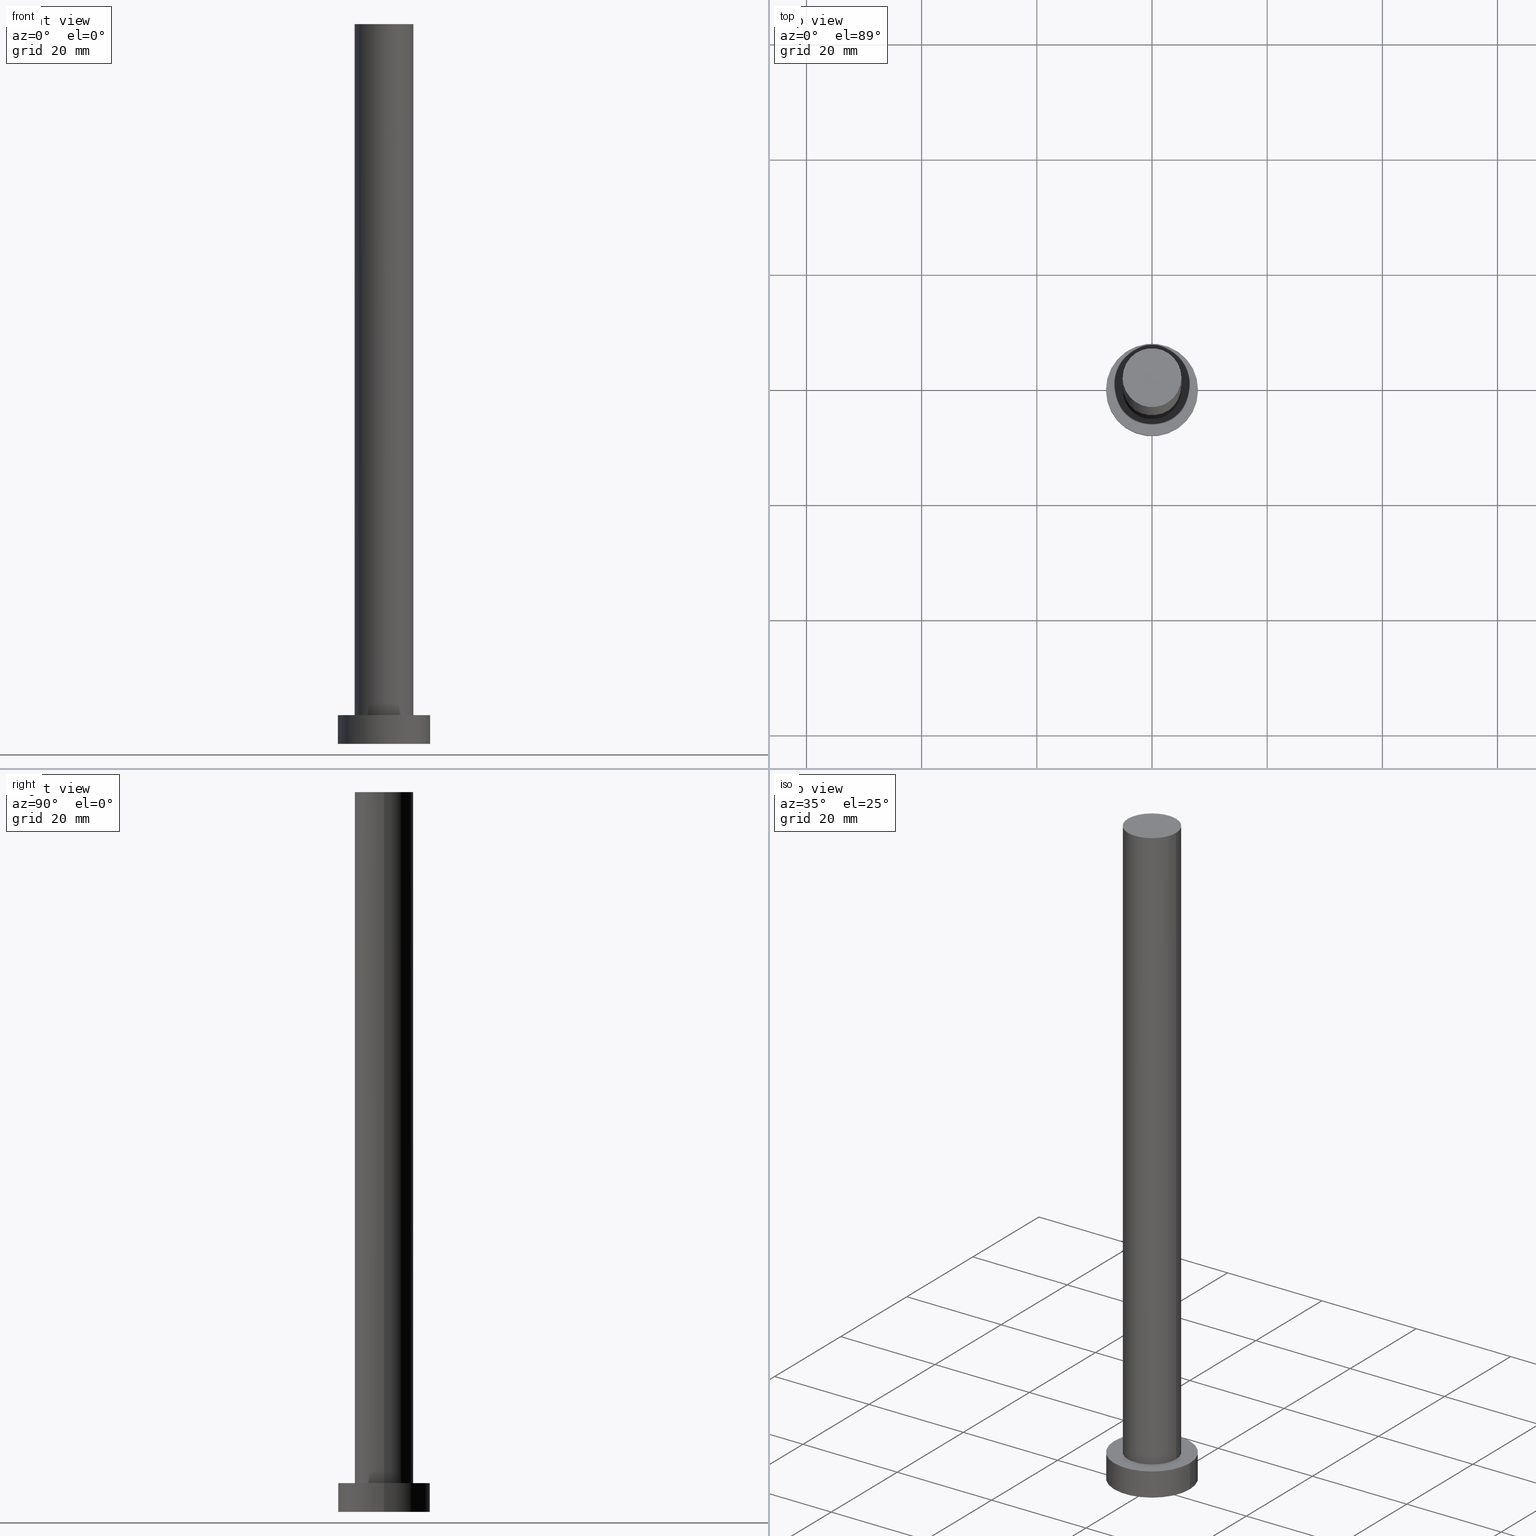
[diagram: canonical four-view strip — front | top / right | iso, engineering-drawing reading convention]
A machine part, canonical four-view strip (front | top / right | iso — engineering-drawing reading convention). The complete STEP part file that produces these views, byte-faithful:
ISO-10303-21;
HEADER;
FILE_DESCRIPTION (( 'STEP AP203' ),
    '1' );
FILE_NAME ('dc78.STEP',
    '2023-02-13T09:57:38',
    ( '' ),
    ( '' ),
    'SwSTEP 2.0',
    'SolidWorks 2019',
    '' );
FILE_SCHEMA (( 'CONFIG_CONTROL_DESIGN' ));
ENDSEC;

DATA;
#1 = DIRECTION ( 'NONE',  ( -0.000000000000000000, -0.000000000000000000, -1.000000000000000000 ) ) ;
#2 = DIRECTION ( 'NONE',  ( -1.000000000000000000, 0.000000000000000000, 0.000000000000000000 ) ) ;
#3 = CC_DESIGN_PERSON_AND_ORGANIZATION_ASSIGNMENT ( #183, #145, ( #110 ) ) ;
#4 = DIRECTION ( 'NONE',  ( 1.000000000000000000, 0.000000000000000000, 0.000000000000000000 ) ) ;
#5 = APPROVAL_STATUS ( 'not_yet_approved' ) ;
#6 = COORDINATED_UNIVERSAL_TIME_OFFSET ( 1, 0, .AHEAD. ) ;
#7 = ADVANCED_FACE ( 'NONE', ( #150 ), #111, .F. ) ;
#8 = APPROVAL ( #186, 'NEUR�EN�' ) ;
#9 = PERSON_AND_ORGANIZATION_ROLE ( 'classification_officer' ) ;
#10 = PRODUCT_DEFINITION_SHAPE ( 'NONE', 'NONE',  #74 ) ;
#11 = AXIS2_PLACEMENT_3D ( 'NONE', #78, #220, #203 ) ;
#12 = ORIENTED_EDGE ( 'NONE', *, *, #64, .T. ) ;
#13 = APPROVAL_DATE_TIME ( #195, #227 ) ;
#14 = LOCAL_TIME ( 10, 57, 38.00000000000000000, #159 ) ;
#15 = PERSON_AND_ORGANIZATION ( #197, #246 ) ;
#16 = ORIENTED_EDGE ( 'NONE', *, *, #185, .F. ) ;
#17 = AXIS2_PLACEMENT_3D ( 'NONE', #154, #122, #236 ) ;
#18 = DIRECTION ( 'NONE',  ( -1.000000000000000000, 0.000000000000000000, 0.000000000000000000 ) ) ;
#19 = DIRECTION ( 'NONE',  ( 1.000000000000000000, 0.000000000000000000, 0.000000000000000000 ) ) ;
#20 = DIRECTION ( 'NONE',  ( -0.000000000000000000, -0.000000000000000000, -1.000000000000000000 ) ) ;
#21 = ADVANCED_FACE ( 'NONE', ( #80 ), #176, .T. ) ;
#22 = DIRECTION ( 'NONE',  ( 0.000000000000000000, 0.000000000000000000, 1.000000000000000000 ) ) ;
#23 = CARTESIAN_POINT ( 'NONE',  ( -5.100000000000001421, 0.000000000000000000, 125.0000000000000000 ) ) ;
#24 = PERSON_AND_ORGANIZATION_ROLE ( 'design_supplier' ) ;
#25 = EDGE_CURVE ( 'NONE', #35, #249, #198, .T. ) ;
#26 =( LENGTH_UNIT ( ) NAMED_UNIT ( * ) SI_UNIT ( .MILLI., .METRE. ) );
#27 = SECURITY_CLASSIFICATION ( '', '', #107 ) ;
#28 = DATE_TIME_ROLE ( 'creation_date' ) ;
#29 = CARTESIAN_POINT ( 'NONE',  ( 0.000000000000000000, 0.000000000000000000, 0.000000000000000000 ) ) ;
#30 = CC_DESIGN_DATE_AND_TIME_ASSIGNMENT ( #144, #28, ( #74 ) ) ;
#31 = CIRCLE ( 'NONE', #61, 5.100000000000001421 ) ;
#32 = APPLICATION_CONTEXT ( 'configuration controlled 3d designs of mechanical parts and assemblies' ) ;
#33 = ORIENTED_EDGE ( 'NONE', *, *, #25, .T. ) ;
#34 = ORIENTED_EDGE ( 'NONE', *, *, #141, .F. ) ;
#35 = VERTEX_POINT ( 'NONE', #81 ) ;
#36 = CARTESIAN_POINT ( 'NONE',  ( 0.000000000000000000, 0.000000000000000000, 0.000000000000000000 ) ) ;
#37 = AXIS2_PLACEMENT_3D ( 'NONE', #44, #52, #200 ) ;
#38 = LINE ( 'NONE', #56, #193 ) ;
#39 = DIRECTION ( 'NONE',  ( 0.000000000000000000, 0.000000000000000000, 1.000000000000000000 ) ) ;
#40 = AXIS2_PLACEMENT_3D ( 'NONE', #206, #187, #245 ) ;
#41 = DIRECTION ( 'NONE',  ( -0.000000000000000000, -0.000000000000000000, -1.000000000000000000 ) ) ;
#42 = DIRECTION ( 'NONE',  ( -1.000000000000000000, 0.000000000000000000, 0.000000000000000000 ) ) ;
#43 = EDGE_CURVE ( 'NONE', #190, #249, #31, .T. ) ;
#44 = CARTESIAN_POINT ( 'NONE',  ( 0.000000000000000000, 0.000000000000000000, 0.000000000000000000 ) ) ;
#45 = PERSON_AND_ORGANIZATION_ROLE ( 'creator' ) ;
#46 = AXIS2_PLACEMENT_3D ( 'NONE', #142, #160, #226 ) ;
#47 = APPROVAL_DATE_TIME ( #62, #8 ) ;
#48 = ORIENTED_EDGE ( 'NONE', *, *, #174, .F. ) ;
#49 = AXIS2_PLACEMENT_3D ( 'NONE', #99, #179, #2 ) ;
#50 = ORIENTED_EDGE ( 'NONE', *, *, #71, .F. ) ;
#51 = AXIS2_PLACEMENT_3D ( 'NONE', #36, #68, #242 ) ;
#52 = DIRECTION ( 'NONE',  ( 0.000000000000000000, 0.000000000000000000, 1.000000000000000000 ) ) ;
#53 = CARTESIAN_POINT ( 'NONE',  ( -8.000000000000000000, 0.000000000000000000, 5.000000000000000000 ) ) ;
#54 = FACE_OUTER_BOUND ( 'NONE', #251, .T. ) ;
#55 = CIRCLE ( 'NONE', #40, 8.000000000000000000 ) ;
#56 = CARTESIAN_POINT ( 'NONE',  ( 8.000000000000000000, 9.797174393178825657E-16, 5.000000000000000000 ) ) ;
#57 = CARTESIAN_POINT ( 'NONE',  ( 0.000000000000000000, 0.000000000000000000, 5.000000000000000000 ) ) ;
#58 = DIRECTION ( 'NONE',  ( 1.000000000000000000, 0.000000000000000000, 0.000000000000000000 ) ) ;
#59 = ADVANCED_FACE ( 'NONE', ( #100, #157 ), #254, .T. ) ;
#60 = MECHANICAL_CONTEXT ( 'NONE', #32, 'mechanical' ) ;
#61 = AXIS2_PLACEMENT_3D ( 'NONE', #98, #152, #239 ) ;
#62 = DATE_AND_TIME ( #165, #70 ) ;
#63 = DIRECTION ( 'NONE',  ( 1.000000000000000000, 0.000000000000000000, 0.000000000000000000 ) ) ;
#64 = EDGE_CURVE ( 'NONE', #249, #190, #83, .T. ) ;
#65 = APPLICATION_CONTEXT ( 'configuration controlled 3d designs of mechanical parts and assemblies' ) ;
#66 = SHAPE_DEFINITION_REPRESENTATION ( #10, #167 ) ;
#67 = COORDINATED_UNIVERSAL_TIME_OFFSET ( 1, 0, .AHEAD. ) ;
#68 = DIRECTION ( 'NONE',  ( 0.000000000000000000, 0.000000000000000000, 1.000000000000000000 ) ) ;
#69 = CALENDAR_DATE ( 2023, 13, 2 ) ;
#70 = LOCAL_TIME ( 10, 57, 38.00000000000000000, #6 ) ;
#71 = EDGE_CURVE ( 'NONE', #149, #35, #238, .T. ) ;
#72 = CALENDAR_DATE ( 2023, 13, 2 ) ;
#73 = ORIENTED_EDGE ( 'NONE', *, *, #43, .F. ) ;
#74 = PRODUCT_DEFINITION ( 'NEZN�M�', '', #181, #156 ) ;
#75 = ORIENTED_EDGE ( 'NONE', *, *, #71, .T. ) ;
#76 = CARTESIAN_POINT ( 'NONE',  ( 0.000000000000000000, 0.000000000000000000, 125.0000000000000000 ) ) ;
#77 = LOCAL_TIME ( 10, 57, 38.00000000000000000, #211 ) ;
#78 = CARTESIAN_POINT ( 'NONE',  ( 0.000000000000000000, 0.000000000000000000, 125.0000000000000000 ) ) ;
#79 = UNCERTAINTY_MEASURE_WITH_UNIT (LENGTH_MEASURE( 1.000000000000000082E-05 ), #26, 'distance_accuracy_value', 'NONE');
#80 = FACE_OUTER_BOUND ( 'NONE', #169, .T. ) ;
#81 = CARTESIAN_POINT ( 'NONE',  ( -5.100000000000001421, 0.000000000000000000, 125.0000000000000000 ) ) ;
#82 = DIRECTION ( 'NONE',  ( 1.000000000000000000, 0.000000000000000000, -0.000000000000000000 ) ) ;
#83 = CIRCLE ( 'NONE', #199, 5.100000000000001421 ) ;
#84 = PERSON_AND_ORGANIZATION ( #197, #246 ) ;
#85 = APPROVAL_ROLE ( '' ) ;
#86 = ADVANCED_FACE ( 'NONE', ( #54 ), #158, .T. ) ;
#87 = CALENDAR_DATE ( 2023, 13, 2 ) ;
#88 = VECTOR ( 'NONE', #41, 1000.000000000000000 ) ;
#89 = LOCAL_TIME ( 10, 57, 38.00000000000000000, #67 ) ;
#90 = ORIENTED_EDGE ( 'NONE', *, *, #92, .T. ) ;
#91 = AXIS2_PLACEMENT_3D ( 'NONE', #222, #22, #82 ) ;
#92 = EDGE_CURVE ( 'NONE', #94, #133, #229, .T. ) ;
#93 = CC_DESIGN_APPROVAL ( #233, ( #74 ) ) ;
#94 = VERTEX_POINT ( 'NONE', #255 ) ;
#95 = EDGE_LOOP ( 'NONE', ( #219, #213, #33, #12 ) ) ;
#96 = CARTESIAN_POINT ( 'NONE',  ( 0.000000000000000000, 0.000000000000000000, 5.000000000000000000 ) ) ;
#97 = DIRECTION ( 'NONE',  ( -0.000000000000000000, -0.000000000000000000, -1.000000000000000000 ) ) ;
#98 = CARTESIAN_POINT ( 'NONE',  ( 0.000000000000000000, 0.000000000000000000, 5.000000000000000000 ) ) ;
#99 = CARTESIAN_POINT ( 'NONE',  ( 0.000000000000000000, 0.000000000000000000, 125.0000000000000000 ) ) ;
#100 = FACE_BOUND ( 'NONE', #247, .T. ) ;
#101 = AXIS2_PLACEMENT_3D ( 'NONE', #161, #228, #63 ) ;
#102 = CARTESIAN_POINT ( 'NONE',  ( -5.100000000000001421, 0.000000000000000000, 5.000000000000000000 ) ) ;
#103 = APPLICATION_PROTOCOL_DEFINITION ( 'international standard', 'config_control_design', 1994, #32 ) ;
#104 = CIRCLE ( 'NONE', #248, 5.100000000000001421 ) ;
#105 = CIRCLE ( 'NONE', #202, 8.000000000000000000 ) ;
#106 = PERSON_AND_ORGANIZATION ( #197, #246 ) ;
#107 = SECURITY_CLASSIFICATION_LEVEL ( 'unclassified' ) ;
#108 = PERSON_AND_ORGANIZATION ( #197, #246 ) ;
#109 = CC_DESIGN_APPROVAL ( #8, ( #181 ) ) ;
#110 = PRODUCT ( 'dc78', 'dc78', '', ( #60 ) ) ;
#111 = PLANE ( 'NONE',  #51 ) ;
#112 = COORDINATED_UNIVERSAL_TIME_OFFSET ( 1, 0, .AHEAD. ) ;
#113 = ORIENTED_EDGE ( 'NONE', *, *, #25, .F. ) ;
#114 = CIRCLE ( 'NONE', #218, 8.000000000000000000 ) ;
#115 = APPROVAL_ROLE ( '' ) ;
#116 = ORIENTED_EDGE ( 'NONE', *, *, #174, .T. ) ;
#117 = CC_DESIGN_PERSON_AND_ORGANIZATION_ASSIGNMENT ( #15, #9, ( #27 ) ) ;
#118 = FACE_OUTER_BOUND ( 'NONE', #216, .T. ) ;
#119 = DIRECTION ( 'NONE',  ( 1.000000000000000000, 0.000000000000000000, 0.000000000000000000 ) ) ;
#120 = CARTESIAN_POINT ( 'NONE',  ( 5.100000000000001421, 6.245698675651502811E-16, 5.000000000000000000 ) ) ;
#121 = EDGE_CURVE ( 'NONE', #149, #190, #140, .T. ) ;
#122 = DIRECTION ( 'NONE',  ( 0.000000000000000000, 0.000000000000000000, 1.000000000000000000 ) ) ;
#123 = PERSON_AND_ORGANIZATION_ROLE ( 'creator' ) ;
#124 =( NAMED_UNIT ( * ) PLANE_ANGLE_UNIT ( ) SI_UNIT ( $, .RADIAN. ) );
#125 = APPROVAL_ROLE ( '' ) ;
#126 = DATE_AND_TIME ( #210, #14 ) ;
#127 = PERSON_AND_ORGANIZATION ( #197, #246 ) ;
#128 = EDGE_CURVE ( 'NONE', #35, #149, #104, .T. ) ;
#129 = ORIENTED_EDGE ( 'NONE', *, *, #209, .T. ) ;
#130 = ORIENTED_EDGE ( 'NONE', *, *, #209, .F. ) ;
#131 = ORIENTED_EDGE ( 'NONE', *, *, #121, .T. ) ;
#132 = APPROVAL_PERSON_ORGANIZATION ( #108, #227, #115 ) ;
#133 = VERTEX_POINT ( 'NONE', #135 ) ;
#134 = DIRECTION ( 'NONE',  ( 0.000000000000000000, 0.000000000000000000, 1.000000000000000000 ) ) ;
#135 = CARTESIAN_POINT ( 'NONE',  ( -8.000000000000000000, 0.000000000000000000, 0.000000000000000000 ) ) ;
#136 = ADVANCED_FACE ( 'NONE', ( #118 ), #178, .T. ) ;
#137 = DIRECTION ( 'NONE',  ( -0.000000000000000000, -0.000000000000000000, -1.000000000000000000 ) ) ;
#138 =( GEOMETRIC_REPRESENTATION_CONTEXT ( 3 ) GLOBAL_UNCERTAINTY_ASSIGNED_CONTEXT ( ( #79 ) ) GLOBAL_UNIT_ASSIGNED_CONTEXT ( ( #26, #124, #208 ) ) REPRESENTATION_CONTEXT ( 'NONE', 'WORKASPACE' ) );
#139 = CARTESIAN_POINT ( 'NONE',  ( 0.000000000000000000, 0.000000000000000000, 5.000000000000000000 ) ) ;
#140 = LINE ( 'NONE', #240, #221 ) ;
#141 = EDGE_CURVE ( 'NONE', #168, #94, #38, .T. ) ;
#142 = CARTESIAN_POINT ( 'NONE',  ( 0.000000000000000000, 0.000000000000000000, 125.0000000000000000 ) ) ;
#143 = FACE_OUTER_BOUND ( 'NONE', #171, .T. ) ;
#144 = DATE_AND_TIME ( #87, #77 ) ;
#145 = PERSON_AND_ORGANIZATION_ROLE ( 'design_owner' ) ;
#146 = AXIS2_PLACEMENT_3D ( 'NONE', #57, #137, #18 ) ;
#147 = DATE_AND_TIME ( #69, #214 ) ;
#148 = ORIENTED_EDGE ( 'NONE', *, *, #43, .T. ) ;
#149 = VERTEX_POINT ( 'NONE', #177 ) ;
#150 = FACE_OUTER_BOUND ( 'NONE', #232, .T. ) ;
#151 = CC_DESIGN_DATE_AND_TIME_ASSIGNMENT ( #147, #188, ( #27 ) ) ;
#152 = DIRECTION ( 'NONE',  ( 0.000000000000000000, 0.000000000000000000, 1.000000000000000000 ) ) ;
#153 = LINE ( 'NONE', #53, #88 ) ;
#154 = CARTESIAN_POINT ( 'NONE',  ( 0.000000000000000000, 0.000000000000000000, 125.0000000000000000 ) ) ;
#155 = CC_DESIGN_PERSON_AND_ORGANIZATION_ASSIGNMENT ( #84, #45, ( #74 ) ) ;
#156 = DESIGN_CONTEXT ( 'detailed design', #65, 'design' ) ;
#157 = FACE_OUTER_BOUND ( 'NONE', #173, .T. ) ;
#158 = CYLINDRICAL_SURFACE ( 'NONE', #146, 8.000000000000000000 ) ;
#159 = COORDINATED_UNIVERSAL_TIME_OFFSET ( 1, 0, .AHEAD. ) ;
#160 = DIRECTION ( 'NONE',  ( -0.000000000000000000, -0.000000000000000000, -1.000000000000000000 ) ) ;
#161 = CARTESIAN_POINT ( 'NONE',  ( 0.000000000000000000, 0.000000000000000000, 0.000000000000000000 ) ) ;
#162 = PRODUCT_RELATED_PRODUCT_CATEGORY ( 'detail', '', ( #110 ) ) ;
#163 = CLOSED_SHELL ( 'NONE', ( #234, #86, #21, #59, #7, #194, #136 ) ) ;
#164 = PERSON_AND_ORGANIZATION ( #197, #246 ) ;
#165 = CALENDAR_DATE ( 2023, 13, 2 ) ;
#166 = MANIFOLD_SOLID_BREP ( 'P�idat vysunut�m3', #163 ) ;
#167 = ADVANCED_BREP_SHAPE_REPRESENTATION ( 'dc78', ( #166, #101 ), #138 ) ;
#168 = VERTEX_POINT ( 'NONE', #223 ) ;
#169 = EDGE_LOOP ( 'NONE', ( #34, #192, #116, #129 ) ) ;
#170 = CC_DESIGN_PERSON_AND_ORGANIZATION_ASSIGNMENT ( #212, #24, ( #181 ) ) ;
#171 = EDGE_LOOP ( 'NONE', ( #50, #131, #148, #113 ) ) ;
#172 = CC_DESIGN_APPROVAL ( #227, ( #27 ) ) ;
#173 = EDGE_LOOP ( 'NONE', ( #175, #253 ) ) ;
#174 = EDGE_CURVE ( 'NONE', #230, #133, #153, .T. ) ;
#175 = ORIENTED_EDGE ( 'NONE', *, *, #201, .T. ) ;
#176 = CYLINDRICAL_SURFACE ( 'NONE', #252, 8.000000000000000000 ) ;
#177 = CARTESIAN_POINT ( 'NONE',  ( 5.100000000000001421, 6.245698675651502811E-16, 125.0000000000000000 ) ) ;
#178 = PLANE ( 'NONE',  #11 ) ;
#179 = DIRECTION ( 'NONE',  ( -0.000000000000000000, -0.000000000000000000, -1.000000000000000000 ) ) ;
#180 = DIRECTION ( 'NONE',  ( 0.000000000000000000, 0.000000000000000000, 1.000000000000000000 ) ) ;
#181 = PRODUCT_DEFINITION_FORMATION_WITH_SPECIFIED_SOURCE ( 'LIBOVOLN�', '', #110, .NOT_KNOWN. ) ;
#182 = CYLINDRICAL_SURFACE ( 'NONE', #46, 5.100000000000001421 ) ;
#183 = PERSON_AND_ORGANIZATION ( #197, #246 ) ;
#184 = CARTESIAN_POINT ( 'NONE',  ( -8.000000000000000000, 0.000000000000000000, 5.000000000000000000 ) ) ;
#185 = EDGE_CURVE ( 'NONE', #168, #230, #114, .T. ) ;
#186 = APPROVAL_STATUS ( 'not_yet_approved' ) ;
#187 = DIRECTION ( 'NONE',  ( 0.000000000000000000, 0.000000000000000000, 1.000000000000000000 ) ) ;
#188 = DATE_TIME_ROLE ( 'classification_date' ) ;
#189 = APPROVAL_PERSON_ORGANIZATION ( #164, #233, #125 ) ;
#190 = VERTEX_POINT ( 'NONE', #120 ) ;
#191 = ORIENTED_EDGE ( 'NONE', *, *, #92, .F. ) ;
#192 = ORIENTED_EDGE ( 'NONE', *, *, #201, .F. ) ;
#193 = VECTOR ( 'NONE', #97, 1000.000000000000000 ) ;
#194 = ADVANCED_FACE ( 'NONE', ( #224 ), #204, .T. ) ;
#195 = DATE_AND_TIME ( #72, #89 ) ;
#196 = ORIENTED_EDGE ( 'NONE', *, *, #128, .T. ) ;
#197 = PERSON ( 'NEUR�EN�', 'NEUR�EN�', 'NEUR�EN�', ('NEUR�EN�'), ('NEUR�EN�'), ('NEUR�EN�') ) ;
#198 = LINE ( 'NONE', #23, #205 ) ;
#199 = AXIS2_PLACEMENT_3D ( 'NONE', #237, #180, #4 ) ;
#200 = DIRECTION ( 'NONE',  ( 1.000000000000000000, 0.000000000000000000, 0.000000000000000000 ) ) ;
#201 = EDGE_CURVE ( 'NONE', #230, #168, #55, .T. ) ;
#202 = AXIS2_PLACEMENT_3D ( 'NONE', #29, #243, #58 ) ;
#203 = DIRECTION ( 'NONE',  ( 1.000000000000000000, 0.000000000000000000, -0.000000000000000000 ) ) ;
#204 = CYLINDRICAL_SURFACE ( 'NONE', #49, 5.100000000000001421 ) ;
#205 = VECTOR ( 'NONE', #20, 1000.000000000000000 ) ;
#206 = CARTESIAN_POINT ( 'NONE',  ( 0.000000000000000000, 0.000000000000000000, 5.000000000000000000 ) ) ;
#207 = APPLICATION_PROTOCOL_DEFINITION ( 'international standard', 'config_control_design', 1994, #65 ) ;
#208 =( NAMED_UNIT ( * ) SI_UNIT ( $, .STERADIAN. ) SOLID_ANGLE_UNIT ( ) );
#209 = EDGE_CURVE ( 'NONE', #133, #94, #105, .T. ) ;
#210 = CALENDAR_DATE ( 2023, 13, 2 ) ;
#211 = COORDINATED_UNIVERSAL_TIME_OFFSET ( 1, 0, .AHEAD. ) ;
#212 = PERSON_AND_ORGANIZATION ( #197, #246 ) ;
#213 = ORIENTED_EDGE ( 'NONE', *, *, #128, .F. ) ;
#214 = LOCAL_TIME ( 10, 57, 38.00000000000000000, #112 ) ;
#215 = ORIENTED_EDGE ( 'NONE', *, *, #141, .T. ) ;
#216 = EDGE_LOOP ( 'NONE', ( #196, #75 ) ) ;
#217 = ORIENTED_EDGE ( 'NONE', *, *, #64, .F. ) ;
#218 = AXIS2_PLACEMENT_3D ( 'NONE', #139, #39, #119 ) ;
#219 = ORIENTED_EDGE ( 'NONE', *, *, #121, .F. ) ;
#220 = DIRECTION ( 'NONE',  ( 0.000000000000000000, 0.000000000000000000, 1.000000000000000000 ) ) ;
#221 = VECTOR ( 'NONE', #225, 1000.000000000000000 ) ;
#222 = CARTESIAN_POINT ( 'NONE',  ( 0.000000000000000000, 0.000000000000000000, 5.000000000000000000 ) ) ;
#223 = CARTESIAN_POINT ( 'NONE',  ( 8.000000000000000000, 9.797174393178825657E-16, 5.000000000000000000 ) ) ;
#224 = FACE_OUTER_BOUND ( 'NONE', #95, .T. ) ;
#225 = DIRECTION ( 'NONE',  ( -0.000000000000000000, -0.000000000000000000, -1.000000000000000000 ) ) ;
#226 = DIRECTION ( 'NONE',  ( -1.000000000000000000, 0.000000000000000000, 0.000000000000000000 ) ) ;
#227 = APPROVAL ( #231, 'NEUR�EN�' ) ;
#228 = DIRECTION ( 'NONE',  ( 0.000000000000000000, 0.000000000000000000, 1.000000000000000000 ) ) ;
#229 = CIRCLE ( 'NONE', #37, 8.000000000000000000 ) ;
#230 = VERTEX_POINT ( 'NONE', #184 ) ;
#231 = APPROVAL_STATUS ( 'not_yet_approved' ) ;
#232 = EDGE_LOOP ( 'NONE', ( #130, #191 ) ) ;
#233 = APPROVAL ( #5, 'NEUR�EN�' ) ;
#234 = ADVANCED_FACE ( 'NONE', ( #143 ), #182, .T. ) ;
#235 = CC_DESIGN_SECURITY_CLASSIFICATION ( #27, ( #181 ) ) ;
#236 = DIRECTION ( 'NONE',  ( 1.000000000000000000, 0.000000000000000000, 0.000000000000000000 ) ) ;
#237 = CARTESIAN_POINT ( 'NONE',  ( 0.000000000000000000, 0.000000000000000000, 5.000000000000000000 ) ) ;
#238 = CIRCLE ( 'NONE', #17, 5.100000000000001421 ) ;
#239 = DIRECTION ( 'NONE',  ( 1.000000000000000000, 0.000000000000000000, 0.000000000000000000 ) ) ;
#240 = CARTESIAN_POINT ( 'NONE',  ( 5.100000000000001421, 6.245698675651502811E-16, 125.0000000000000000 ) ) ;
#241 = CC_DESIGN_PERSON_AND_ORGANIZATION_ASSIGNMENT ( #127, #123, ( #181 ) ) ;
#242 = DIRECTION ( 'NONE',  ( 1.000000000000000000, 0.000000000000000000, -0.000000000000000000 ) ) ;
#243 = DIRECTION ( 'NONE',  ( 0.000000000000000000, 0.000000000000000000, 1.000000000000000000 ) ) ;
#244 = APPROVAL_DATE_TIME ( #126, #233 ) ;
#245 = DIRECTION ( 'NONE',  ( 1.000000000000000000, 0.000000000000000000, 0.000000000000000000 ) ) ;
#246 = ORGANIZATION ( 'NEUR�EN�', 'NEUR�EN�', '' ) ;
#247 = EDGE_LOOP ( 'NONE', ( #217, #73 ) ) ;
#248 = AXIS2_PLACEMENT_3D ( 'NONE', #76, #134, #19 ) ;
#249 = VERTEX_POINT ( 'NONE', #102 ) ;
#250 = APPROVAL_PERSON_ORGANIZATION ( #106, #8, #85 ) ;
#251 = EDGE_LOOP ( 'NONE', ( #16, #215, #90, #48 ) ) ;
#252 = AXIS2_PLACEMENT_3D ( 'NONE', #96, #1, #42 ) ;
#253 = ORIENTED_EDGE ( 'NONE', *, *, #185, .T. ) ;
#254 = PLANE ( 'NONE',  #91 ) ;
#255 = CARTESIAN_POINT ( 'NONE',  ( 8.000000000000000000, 9.797174393178825657E-16, 0.000000000000000000 ) ) ;
ENDSEC;
END-ISO-10303-21;
